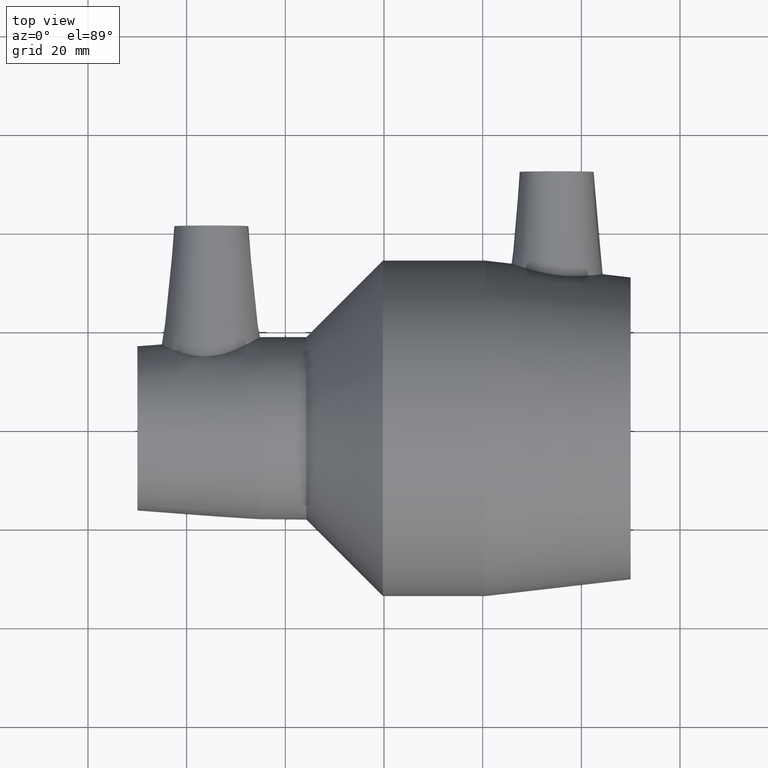
[diagram: clean part render]
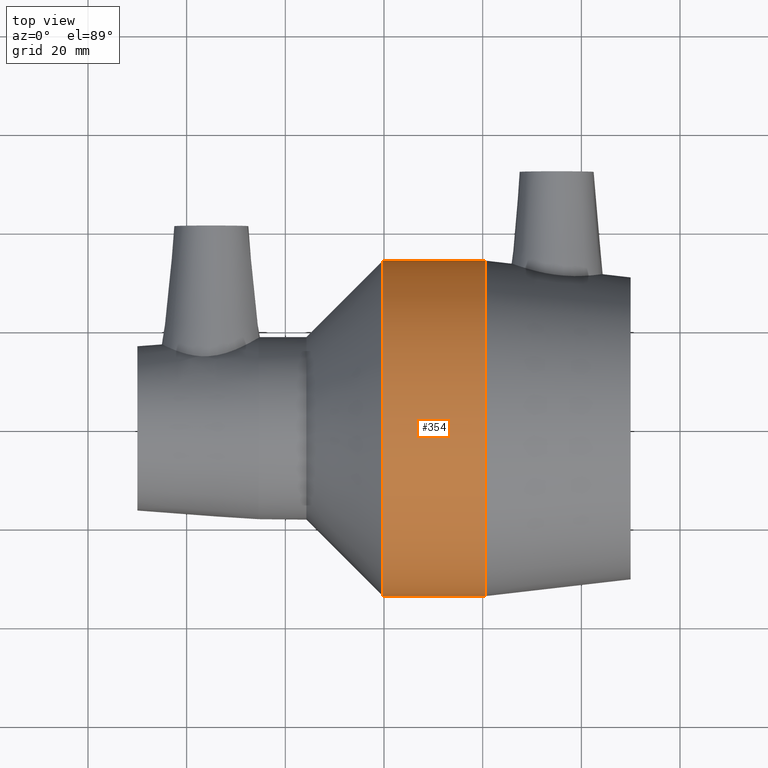
[diagram: same view with one face highlighted and labeled with its STEP entity id]
A machine part, top view. The second image highlights one B-rep face of the part: STEP entity #354.
In plain terms, the highlighted cylindrical surface (bore or boss wall) has radius 34 mm, axis along (1, 0, 0).
Its self-contained STEP definition (entity closure, byte-faithful):
#40=FACE_BOUND('',#129,.T.);
#63=CYLINDRICAL_SURFACE('',#402,34.);
#84=FACE_OUTER_BOUND('',#128,.T.);
#128=EDGE_LOOP('',(#290));
#129=EDGE_LOOP('',(#291));
#176=CIRCLE('',#401,34.);
#177=CIRCLE('',#403,34.);
#208=VERTEX_POINT('',#689);
#209=VERTEX_POINT('',#692);
#242=EDGE_CURVE('',#208,#208,#176,.T.);
#243=EDGE_CURVE('',#209,#209,#177,.T.);
#290=ORIENTED_EDGE('',*,*,#243,.F.);
#291=ORIENTED_EDGE('',*,*,#242,.T.);
#354=ADVANCED_FACE('',(#84,#40),#63,.T.);
#401=AXIS2_PLACEMENT_3D('',#690,#493,#494);
#402=AXIS2_PLACEMENT_3D('',#691,#495,#496);
#403=AXIS2_PLACEMENT_3D('',#693,#497,#498);
#493=DIRECTION('center_axis',(1.,1.83697019872103E-16,0.));
#494=DIRECTION('ref_axis',(0.,0.,-1.));
#495=DIRECTION('center_axis',(1.,1.83697019872103E-16,0.));
#496=DIRECTION('ref_axis',(-1.27220423054671E-16,1.,0.));
#497=DIRECTION('center_axis',(1.,1.83697019872103E-16,0.));
#498=DIRECTION('ref_axis',(0.,0.,-1.));
#689=CARTESIAN_POINT('',(-0.224999999999997,34.,0.));
#690=CARTESIAN_POINT('Origin',(-0.224999999999995,9.14351916413393E-15,
0.));
#691=CARTESIAN_POINT('Origin',(10.1875,1.10562643835522E-14,0.));
#692=CARTESIAN_POINT('',(20.6,34.,0.));
#693=CARTESIAN_POINT('Origin',(20.6,1.29690096029705E-14,0.));